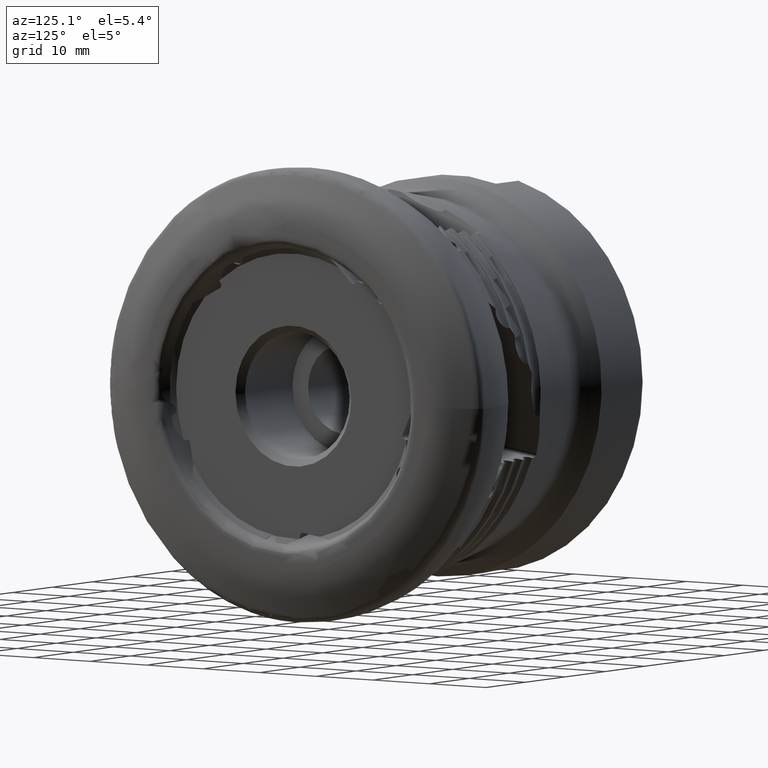
[diagram: clean part render]
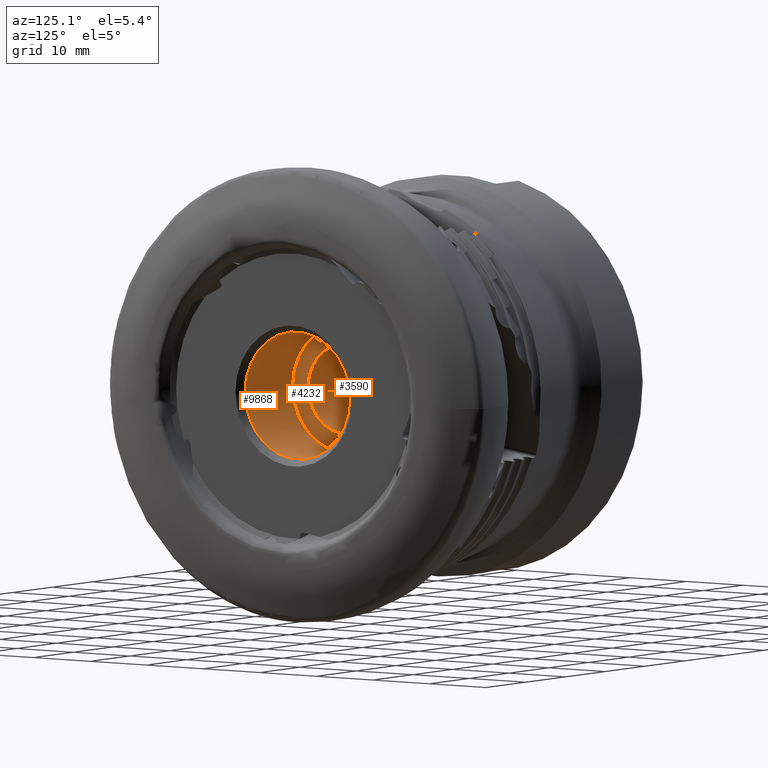
[diagram: same view with one multi-face feature highlighted, each face labeled with its STEP entity id]
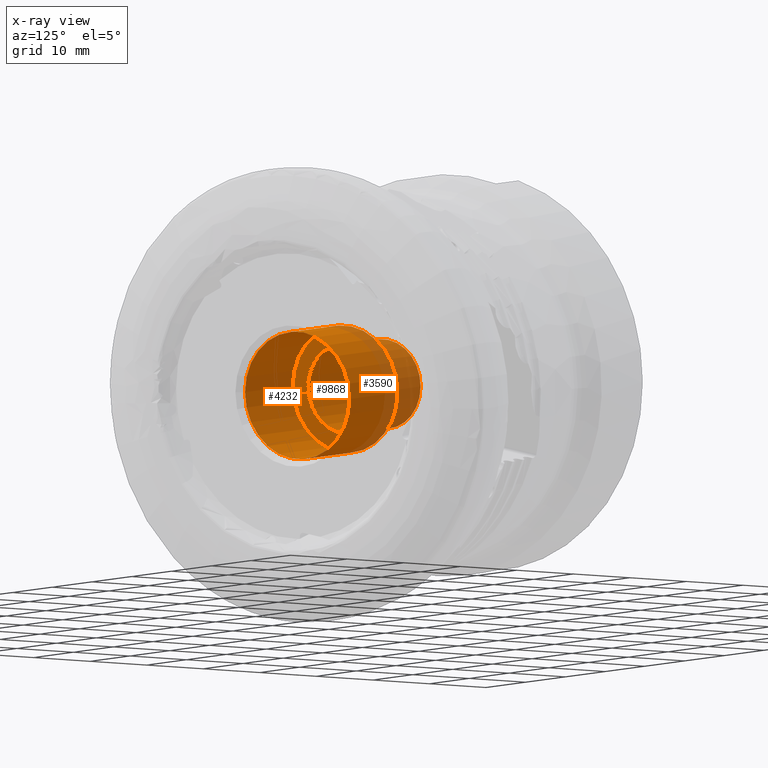
[diagram: x-ray of the same camera — body ghosted, the whole feature saturated]
A machine part, auxiliary view. The highlighted faces form ONE feature: a stepped (counterbored) hole: 2 coaxial cylindrical walls of radii 6.5 -> 9.25 mm joined by 1 annular planar shoulder face(s). The faces share edges in the B-rep.
The next image is the same camera in x-ray: the body ghosted and the whole hole feature saturated, so the bore chain is visible through the body.
Their STEP definitions:
[1] entity #9868 (Cylinder):
#501 = CARTESIAN_POINT ( 'NONE',  ( -2.155259177039456500, 4.606768601024758800E-017, 0.0000000000000000000 ) ) ;
#576 = ORIENTED_EDGE ( 'NONE', *, *, #12097, .T. ) ;
#1345 = CIRCLE ( 'NONE', #3595, 9.250000000000000000 ) ;
#1601 = DIRECTION ( 'NONE',  ( 0.0000000000000000000, 1.000000000000000000, 0.0000000000000000000 ) ) ;
#3595 = AXIS2_PLACEMENT_3D ( 'NONE', #501, #8184, #1601 ) ;
#3746 = CARTESIAN_POINT ( 'NONE',  ( -14.10525917703945700, 9.249999999999998200, 0.0000000000000000000 ) ) ;
#3882 = CIRCLE ( 'NONE', #11957, 9.249999999999998200 ) ;
#4992 = FACE_OUTER_BOUND ( 'NONE', #7406, .T. ) ;
#5088 = EDGE_CURVE ( 'NONE', #10207, #10207, #3882, .T. ) ;
#5850 = DIRECTION ( 'NONE',  ( 1.000000000000000000, 8.918127540765139200E-019, -0.0000000000000000000 ) ) ;
#6183 = DIRECTION ( 'NONE',  ( 1.000000000000000000, 8.918127540765139200E-019, -0.0000000000000000000 ) ) ;
#6897 = DIRECTION ( 'NONE',  ( 0.0000000000000000000, 1.000000000000000000, 0.0000000000000000000 ) ) ;
#7406 = EDGE_LOOP ( 'NONE', ( #11533 ) ) ;
#8184 = DIRECTION ( 'NONE',  ( 1.000000000000000000, 8.918127540765139200E-019, -0.0000000000000000000 ) ) ;
#8342 = EDGE_LOOP ( 'NONE', ( #576 ) ) ;
#9866 = VERTEX_POINT ( 'NONE', #13655 ) ;
#9868 = ADVANCED_FACE ( 'NONE', ( #4992, #13784 ), #10502, .F. ) ;
#10207 = VERTEX_POINT ( 'NONE', #3746 ) ;
#10502 = CYLINDRICAL_SURFACE ( 'NONE', #12174, 9.249999999999998200 ) ;
#11533 = ORIENTED_EDGE ( 'NONE', *, *, #5088, .F. ) ;
#11957 = AXIS2_PLACEMENT_3D ( 'NONE', #12775, #6183, #13911 ) ;
#12097 = EDGE_CURVE ( 'NONE', #9866, #9866, #1345, .T. ) ;
#12174 = AXIS2_PLACEMENT_3D ( 'NONE', #12439, #5850, #6897 ) ;
#12439 = CARTESIAN_POINT ( 'NONE',  ( 0.3947408229605479100, 4.834180853314269900E-017, 0.0000000000000000000 ) ) ;
#12775 = CARTESIAN_POINT ( 'NONE',  ( -14.10525917703945700, 3.541052359903324500E-017, 0.0000000000000000000 ) ) ;
#13655 = CARTESIAN_POINT ( 'NONE',  ( -2.155259177039456500, 9.250000000000000000, 0.0000000000000000000 ) ) ;
#13784 = FACE_OUTER_BOUND ( 'NONE', #8342, .T. ) ;
#13911 = DIRECTION ( 'NONE',  ( 0.0000000000000000000, 1.000000000000000000, 0.0000000000000000000 ) ) ;
[2] entity #3590 (Cylinder):
#425 = CARTESIAN_POINT ( 'NONE',  ( -23.90525917703946500, 6.499999999999997300, 0.0000000000000000000 ) ) ;
#718 = ORIENTED_EDGE ( 'NONE', *, *, #1256, .F. ) ;
#1256 = EDGE_CURVE ( 'NONE', #4693, #4693, #7155, .T. ) ;
#1294 = DIRECTION ( 'NONE',  ( 1.000000000000000000, 8.918127540765139200E-019, -0.0000000000000000000 ) ) ;
#1295 = FACE_OUTER_BOUND ( 'NONE', #7297, .T. ) ;
#1970 = AXIS2_PLACEMENT_3D ( 'NONE', #7873, #1294, #8976 ) ;
#2779 = CARTESIAN_POINT ( 'NONE',  ( 0.3947408229605479100, 4.834180853314269900E-017, 0.0000000000000000000 ) ) ;
#3180 = ORIENTED_EDGE ( 'NONE', *, *, #6734, .T. ) ;
#3199 = AXIS2_PLACEMENT_3D ( 'NONE', #2779, #8289, #9396 ) ;
#3529 = CYLINDRICAL_SURFACE ( 'NONE', #3199, 6.499999999999997300 ) ;
#3590 = ADVANCED_FACE ( 'NONE', ( #1295, #7140 ), #3529, .F. ) ;
#4065 = DIRECTION ( 'NONE',  ( 1.000000000000000000, 8.918127540765139200E-019, -0.0000000000000000000 ) ) ;
#4693 = VERTEX_POINT ( 'NONE', #425 ) ;
#6157 = AXIS2_PLACEMENT_3D ( 'NONE', #10667, #4065, #11769 ) ;
#6734 = EDGE_CURVE ( 'NONE', #7282, #7282, #9914, .T. ) ;
#7140 = FACE_OUTER_BOUND ( 'NONE', #12742, .T. ) ;
#7155 = CIRCLE ( 'NONE', #1970, 6.499999999999997300 ) ;
#7282 = VERTEX_POINT ( 'NONE', #11432 ) ;
#7297 = EDGE_LOOP ( 'NONE', ( #718 ) ) ;
#7873 = CARTESIAN_POINT ( 'NONE',  ( -23.90525917703946500, 2.667075860908340000E-017, 0.0000000000000000000 ) ) ;
#8289 = DIRECTION ( 'NONE',  ( 1.000000000000000000, 8.918127540765139200E-019, -0.0000000000000000000 ) ) ;
#8976 = DIRECTION ( 'NONE',  ( 0.0000000000000000000, 1.000000000000000000, 0.0000000000000000000 ) ) ;
#9396 = DIRECTION ( 'NONE',  ( 0.0000000000000000000, 1.000000000000000000, 0.0000000000000000000 ) ) ;
#9914 = CIRCLE ( 'NONE', #6157, 6.499999999999998200 ) ;
#10667 = CARTESIAN_POINT ( 'NONE',  ( -14.10525917703945700, 3.541052359903324500E-017, 0.0000000000000000000 ) ) ;
#11432 = CARTESIAN_POINT ( 'NONE',  ( -14.10525917703945700, 6.499999999999998200, 0.0000000000000000000 ) ) ;
#11769 = DIRECTION ( 'NONE',  ( 0.0000000000000000000, 1.000000000000000000, 0.0000000000000000000 ) ) ;
#12742 = EDGE_LOOP ( 'NONE', ( #3180 ) ) ;
[3] entity #4232 (Plane):
#2686 = FACE_BOUND ( 'NONE', #9703, .T. ) ;
#3746 = CARTESIAN_POINT ( 'NONE',  ( -14.10525917703945700, 9.249999999999998200, 0.0000000000000000000 ) ) ;
#3882 = CIRCLE ( 'NONE', #11957, 9.249999999999998200 ) ;
#3989 = PLANE ( 'NONE',  #12497 ) ;
#4065 = DIRECTION ( 'NONE',  ( 1.000000000000000000, 8.918127540765139200E-019, -0.0000000000000000000 ) ) ;
#4232 = ADVANCED_FACE ( 'NONE', ( #2686, #13686 ), #3989, .F. ) ;
#4233 = EDGE_LOOP ( 'NONE', ( #11805 ) ) ;
#5088 = EDGE_CURVE ( 'NONE', #10207, #10207, #3882, .T. ) ;
#5147 = DIRECTION ( 'NONE',  ( 8.918127540765139200E-019, -1.000000000000000000, 0.0000000000000000000 ) ) ;
#6157 = AXIS2_PLACEMENT_3D ( 'NONE', #10667, #4065, #11769 ) ;
#6183 = DIRECTION ( 'NONE',  ( 1.000000000000000000, 8.918127540765139200E-019, -0.0000000000000000000 ) ) ;
#6734 = EDGE_CURVE ( 'NONE', #7282, #7282, #9914, .T. ) ;
#7282 = VERTEX_POINT ( 'NONE', #11432 ) ;
#8008 = ORIENTED_EDGE ( 'NONE', *, *, #6734, .F. ) ;
#9703 = EDGE_LOOP ( 'NONE', ( #8008 ) ) ;
#9914 = CIRCLE ( 'NONE', #6157, 6.499999999999998200 ) ;
#10207 = VERTEX_POINT ( 'NONE', #3746 ) ;
#10641 = CARTESIAN_POINT ( 'NONE',  ( -14.10525917703945700, 9.249999999999998200, 0.0000000000000000000 ) ) ;
#10667 = CARTESIAN_POINT ( 'NONE',  ( -14.10525917703945700, 3.541052359903324500E-017, 0.0000000000000000000 ) ) ;
#11432 = CARTESIAN_POINT ( 'NONE',  ( -14.10525917703945700, 6.499999999999998200, 0.0000000000000000000 ) ) ;
#11746 = DIRECTION ( 'NONE',  ( -1.000000000000000000, -8.918127540765139200E-019, 0.0000000000000000000 ) ) ;
#11769 = DIRECTION ( 'NONE',  ( 0.0000000000000000000, 1.000000000000000000, 0.0000000000000000000 ) ) ;
#11805 = ORIENTED_EDGE ( 'NONE', *, *, #5088, .T. ) ;
#11957 = AXIS2_PLACEMENT_3D ( 'NONE', #12775, #6183, #13911 ) ;
#12497 = AXIS2_PLACEMENT_3D ( 'NONE', #10641, #11746, #5147 ) ;
#12775 = CARTESIAN_POINT ( 'NONE',  ( -14.10525917703945700, 3.541052359903324500E-017, 0.0000000000000000000 ) ) ;
#13686 = FACE_OUTER_BOUND ( 'NONE', #4233, .T. ) ;
#13911 = DIRECTION ( 'NONE',  ( 0.0000000000000000000, 1.000000000000000000, 0.0000000000000000000 ) ) ;